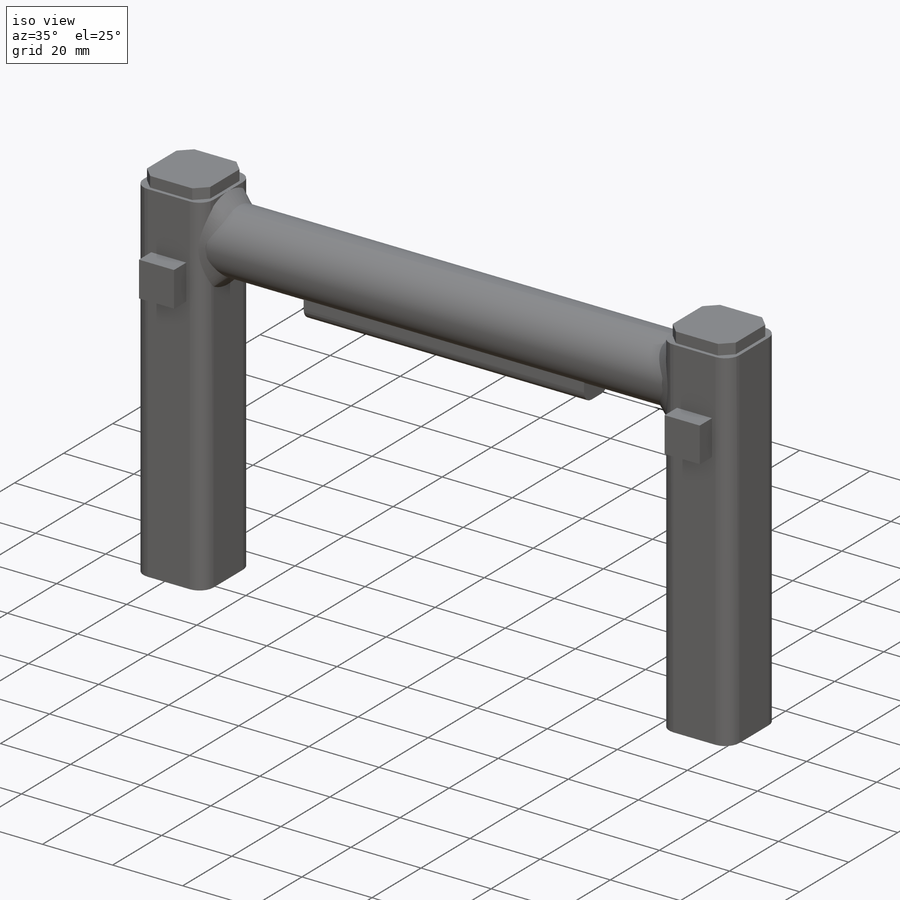
[diagram: iso view]
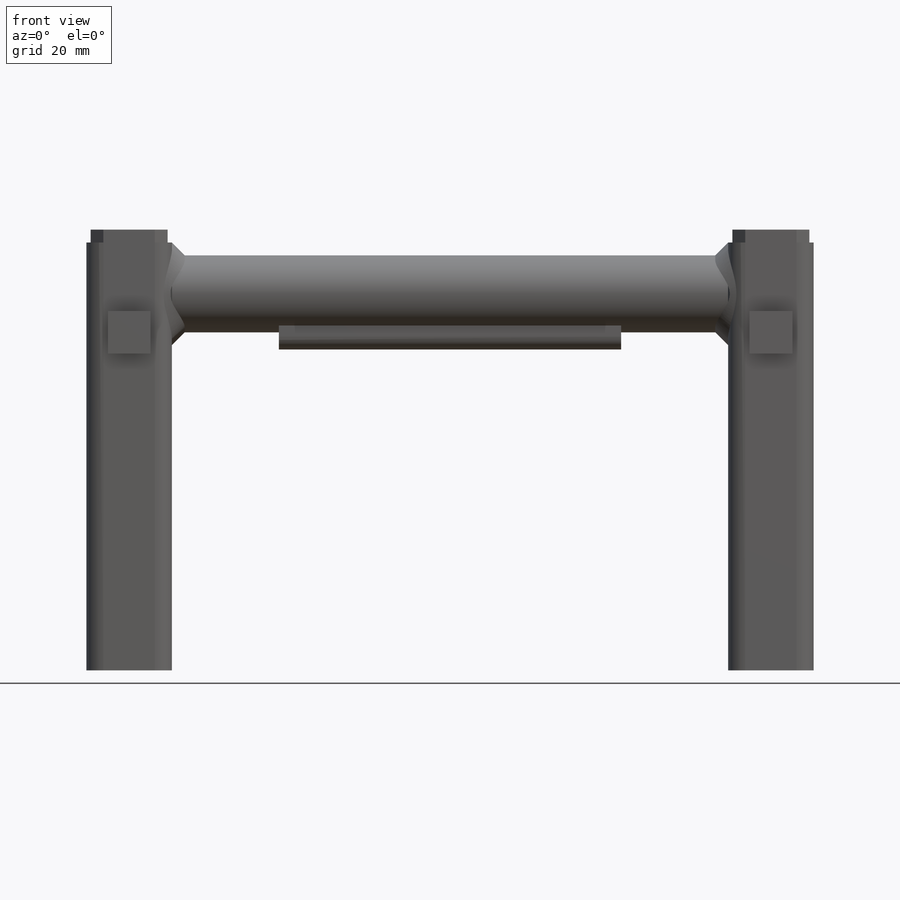
[diagram: front view]
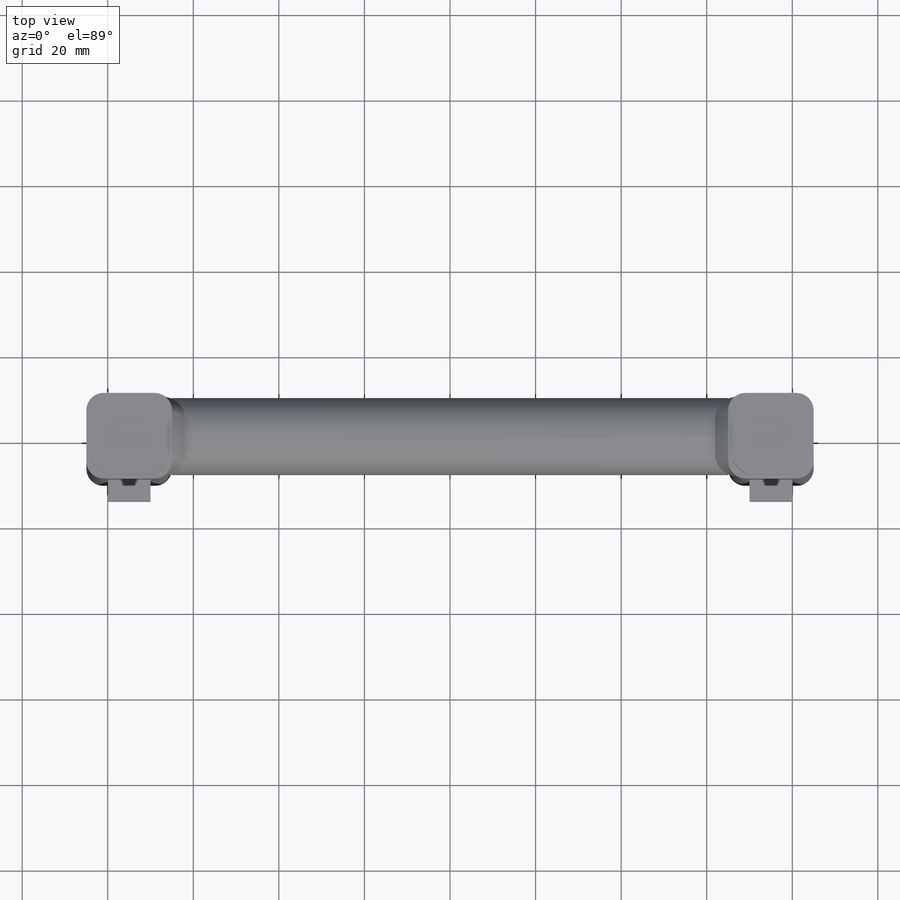
[diagram: top view]
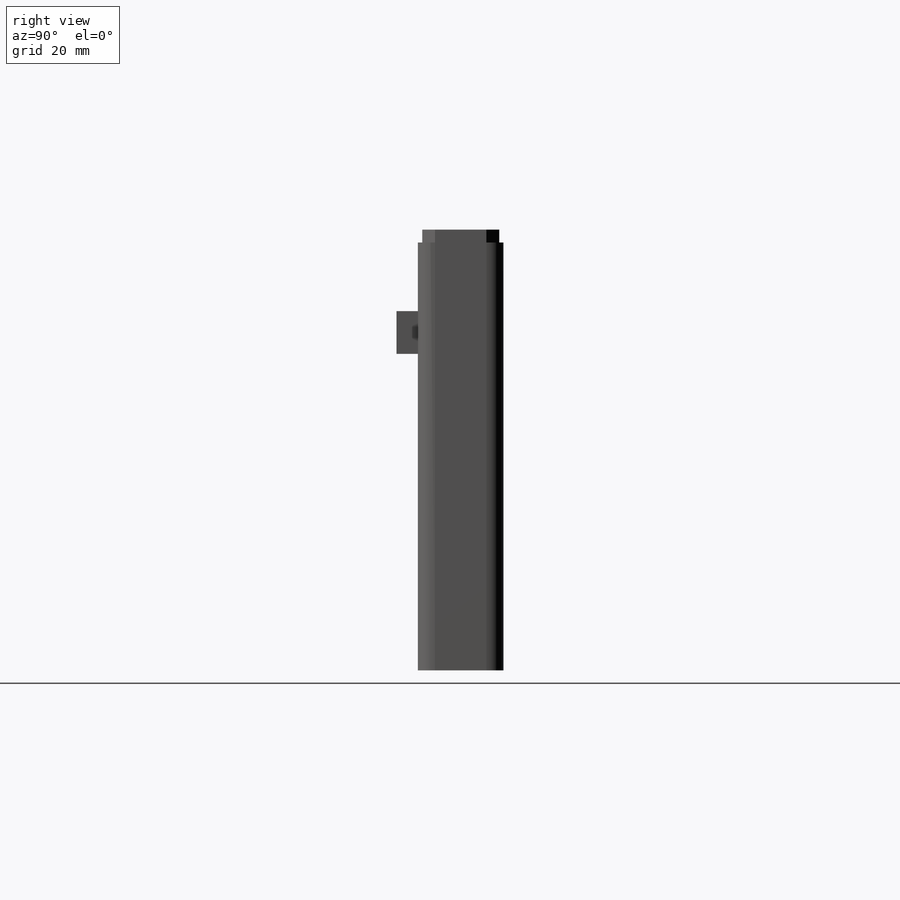
[diagram: right view]
SOLIDWORKS PART (.sldprt)
format: sldprt  version: not decoded by parser v0  size: 478,208 bytes
history: native  units: mm
features: sketch x6, extrude x3, plane x2, material x1, pattern_linear x1, fillet x1 + 4 further entries (+21 scaffold rows collapsed)
feature tree (39):
  scaffold x21  (default folders/planes/origin — collapsed)
  material  "Cast Alloy Steel"
  "Cut-List-Item2"
  "Cut-List-Item3"
  "Cut-List-Item4"
  "Cut-List-Item6"
  sketch  "Sketch1"  dims[D1=100.0mm D2=100.0mm D3=150.0mm D4=75.0mm D5=12.0mm]
  plane  "Plane6"
  sketch  "Sketch18"  dims[c1.D1=6.35mm c1.D2=6.35mm c1.D3=6.35mm c1.D4=6.35mm c1.D5=6.35mm c1.D6=6.35mm c1.D7=6.35mm c1.D8=6.35mm c2.D1=6.604mm c2.D2=6.604mm c2.D3=6.604mm c2.D4=6.604mm c3.D1=4.0mm c3.Thickness=2.0mm c3.D4=12.9032mm c3.D5=12.9286mm c3.V_leg=20.0mm c3.H_leg=20.0mm c4.D4=50.3428mm c4.D5=50.8508mm c5.D4=~41.274964mm c5.D5=~41.274964mm]
  plane  "Plane7"
  sketch  "Sketch19"  dims[c1.In_dia=14.0mm c1.Out_dia=18.0mm c1.D10=6.0mm c1.D11=3.0mm c1.D12=0.0mm c1.D13=3.0mm c1.D14=0.0mm c2.D10=6.0mm c2.D11=3.0mm c2.D12=0.0mm c2.D13=3.0mm c2.D14=0.0mm c2.D1=3.0mm c2.D2=3.0mm c2.D3=3.0mm]
  sketch  "Sketch20"  dims[D1=10.0mm D2=10.0mm D3=5.0mm]
  extrude  "Boss-Extrude1"  Depth=5mm
  pattern_linear  "LPattern1"  Count1=2 Count2=1 Spacing1=170mm Spacing2=10mm
  sketch  "Sketch21"  dims[D1=80.0mm D2=10.0mm D3=5.0mm D4=40.0mm]
  extrude  "Boss-Extrude3"  Depth=15mm
  fillet  "Fillet1"  Radius=3mm
  sketch  "Sketch22"  dims[D1=10.0mm D2=5.0mm D3=10.0mm]
  extrude  "Boss-Extrude4"  Depth=5mm
decode coverage: 11 of 11 modeling features carry decoded parameters; 4 rows unclassified (native names shown)
note: ~ marks probable driven/reference dimensions
note: suppression state not decoded; provenance and decode notes live in map.json
